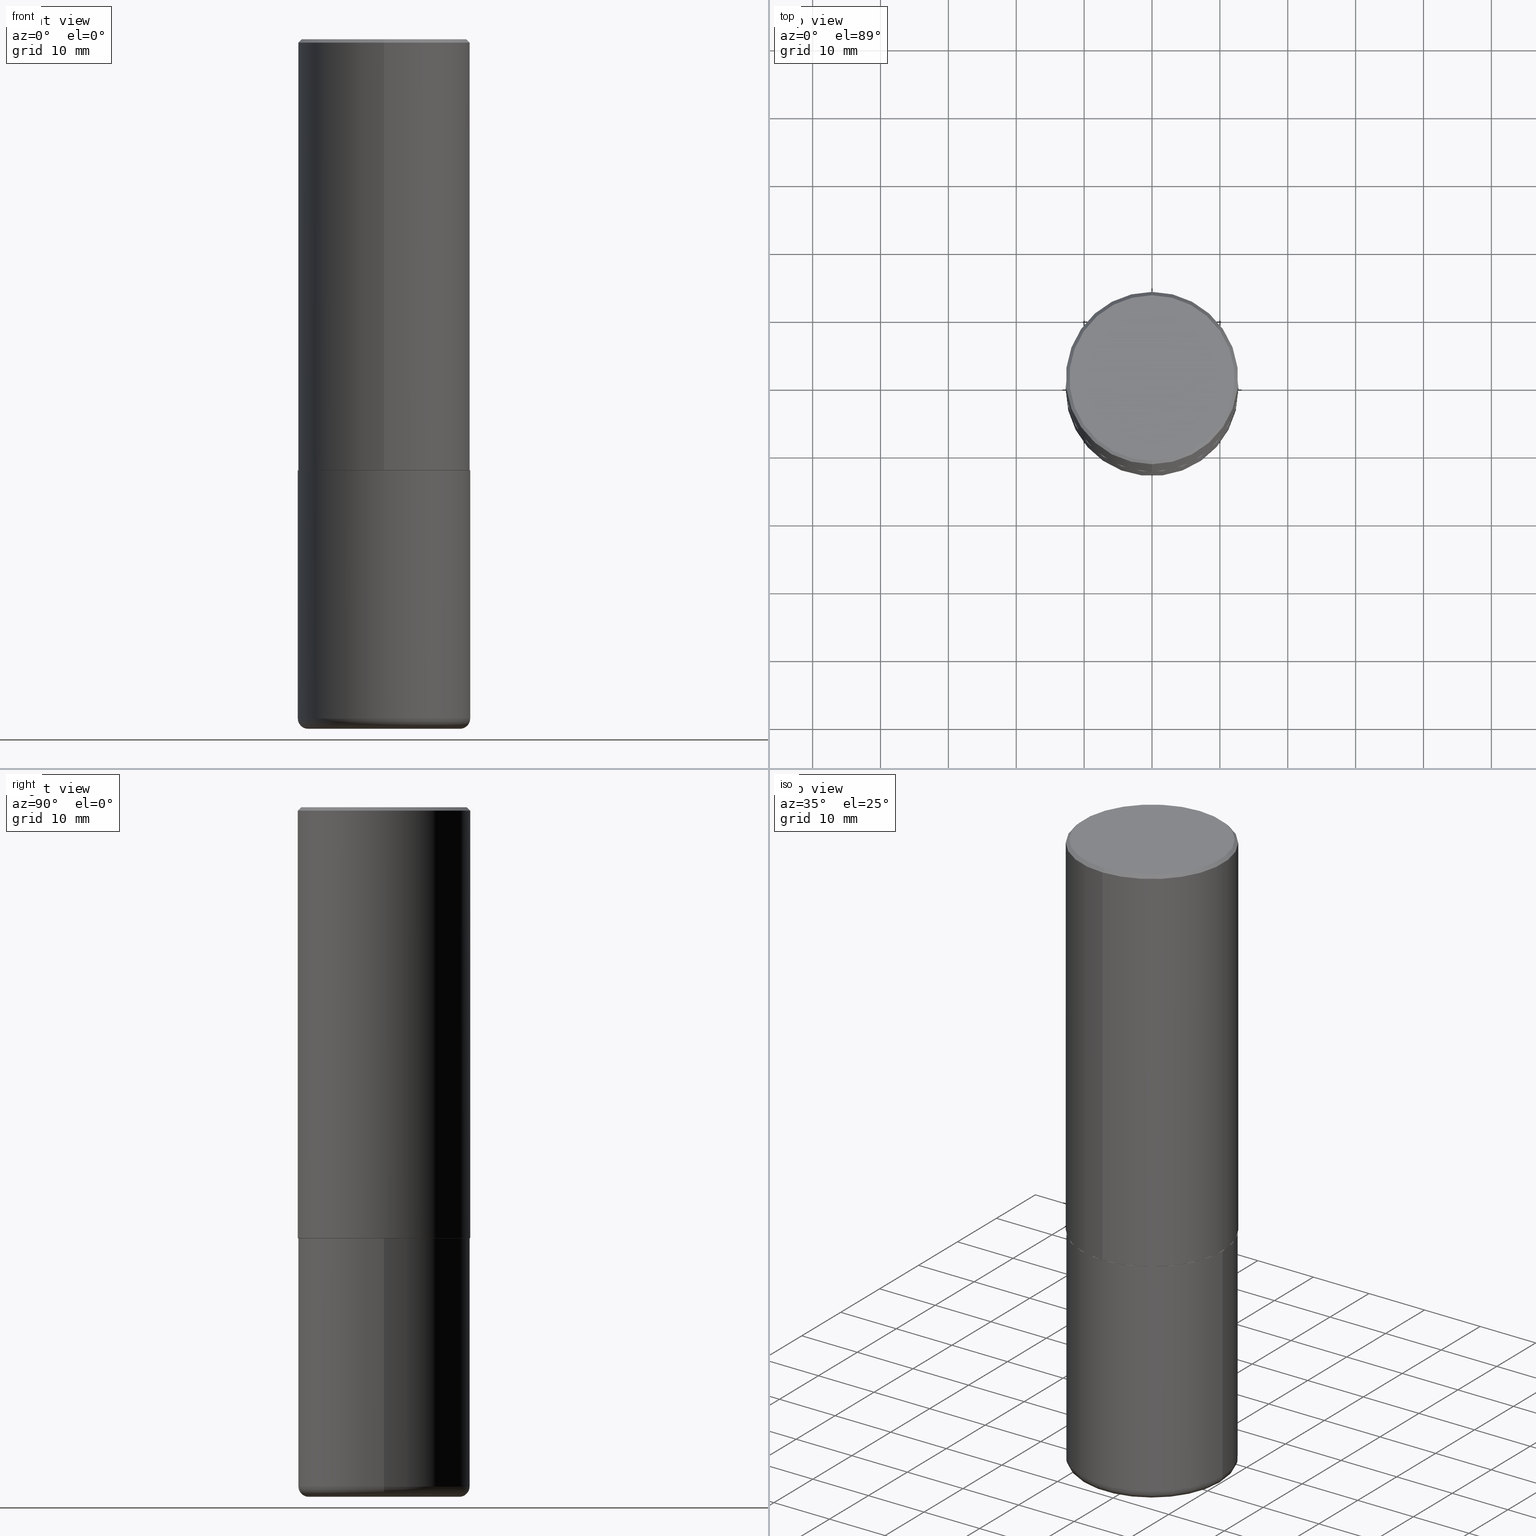
[diagram: canonical four-view strip — front | top / right | iso, engineering-drawing reading convention]
A machine part, canonical four-view strip (front | top / right | iso — engineering-drawing reading convention). The complete STEP part file that produces these views, byte-faithful:
ISO-10303-21;
HEADER;
FILE_DESCRIPTION (( 'STEP AP203' ),
    '1' );
FILE_NAME ('36717.STEP',
    '2024-03-01T17:32:02',
    ( '' ),
    ( '' ),
    'SwSTEP 2.0',
    'SolidWorks 2023',
    '' );
FILE_SCHEMA (( 'CONFIG_CONTROL_DESIGN' ));
ENDSEC;

DATA;
#1 = AXIS2_PLACEMENT_3D ( 'NONE', #121, #82, #14 ) ;
#2 = CARTESIAN_POINT ( 'NONE',  ( 0.000000000000000000, 0.000000000000000000, 0.000000000000000000 ) ) ;
#3 = ORIENTED_EDGE ( 'NONE', *, *, #92, .F. ) ;
#4 = ADVANCED_FACE ( 'NONE', ( #234 ), #270, .T. ) ;
#5 = VERTEX_POINT ( 'NONE', #198 ) ;
#6 = ORIENTED_EDGE ( 'NONE', *, *, #230, .F. ) ;
#7 = DIRECTION ( 'NONE',  ( -2.444544534276841438E-29, 3.492804948822114088E-15, 1.000000000000000000 ) ) ;
#8 = UNCERTAINTY_MEASURE_WITH_UNIT (LENGTH_MEASURE( 1.000000000000000082E-05 ), #215, 'distance_accuracy_value', 'NONE');
#9 = DIRECTION ( 'NONE',  ( -2.444544534276841438E-29, 3.492804948822114088E-15, 1.000000000000000000 ) ) ;
#10 = EDGE_CURVE ( 'NONE', #385, #30, #356, .T. ) ;
#11 = PERSON_AND_ORGANIZATION_ROLE ( 'design_owner' ) ;
#12 = CARTESIAN_POINT ( 'NONE',  ( -3.484498376165385415E-15, -0.4990000000000087144, -2.499999999999998668 ) ) ;
#13 = PERSON_AND_ORGANIZATION_ROLE ( 'classification_officer' ) ;
#14 = DIRECTION ( 'NONE',  ( 1.000000000000000000, -6.982962677686269077E-15, 0.000000000000000000 ) ) ;
#15 = EDGE_CURVE ( 'NONE', #30, #224, #293, .T. ) ;
#16 = DIRECTION ( 'NONE',  ( 0.000000000000000000, 0.000000000000000000, 1.000000000000000000 ) ) ;
#17 = CARTESIAN_POINT ( 'NONE',  ( 3.545608251442960663E-15, 0.4989999999999912283, -2.500000000000001776 ) ) ;
#18 = COORDINATED_UNIVERSAL_TIME_OFFSET ( 5, 0, .BEHIND. ) ;
#19 = AXIS2_PLACEMENT_3D ( 'NONE', #182, #122, #336 ) ;
#20 = VECTOR ( 'NONE', #314, 39.37007874015748143 ) ;
#21 = DIRECTION ( 'NONE',  ( -4.851104656540957964E-15, -0.7071067811865491270, -0.7071067811865459074 ) ) ;
#22 = CIRCLE ( 'NONE', #19, 0.5000000000000001110 ) ;
#23 = COORDINATED_UNIVERSAL_TIME_OFFSET ( 5, 0, .BEHIND. ) ;
#24 = DIRECTION ( 'NONE',  ( -2.444544534276841438E-29, 3.492804948822114088E-15, 1.000000000000000000 ) ) ;
#25 = ORIENTED_EDGE ( 'NONE', *, *, #329, .F. ) ;
#26 = DIRECTION ( 'NONE',  ( -6.982962677686265922E-15, -1.000000000000000000, 3.491643216902136408E-15 ) ) ;
#27 = EDGE_LOOP ( 'NONE', ( #192, #72, #325, #253 ) ) ;
#28 = PRODUCT_RELATED_PRODUCT_CATEGORY ( 'detail', '', ( #244 ) ) ;
#29 = DIRECTION ( 'NONE',  ( -6.982962677686265922E-15, -1.000000000000000000, 3.492804948822113694E-15 ) ) ;
#30 = VERTEX_POINT ( 'NONE', #110 ) ;
#31 = CALENDAR_DATE ( 2024, 1, 3 ) ;
#32 = CARTESIAN_POINT ( 'NONE',  ( 4.889089068553708695E-31, -6.985609897644266091E-17, -0.02000000000000010797 ) ) ;
#33 = EDGE_LOOP ( 'NONE', ( #105, #389, #350, #220 ) ) ;
#34 = PERSON_AND_ORGANIZATION ( #297, #178 ) ;
#35 = ADVANCED_FACE ( 'NONE', ( #235 ), #299, .T. ) ;
#36 = COORDINATED_UNIVERSAL_TIME_OFFSET ( 5, 0, .BEHIND. ) ;
#37 = LOCAL_TIME ( 12, 32, 2.000000000000000000, #36 ) ;
#38 = CYLINDRICAL_SURFACE ( 'NONE', #355, 0.5000000000000001110 ) ;
#39 = VECTOR ( 'NONE', #206, 39.37007874015748143 ) ;
#40 = VERTEX_POINT ( 'NONE', #327 ) ;
#41 = CC_DESIGN_PERSON_AND_ORGANIZATION_ASSIGNMENT ( #51, #49, ( #317 ) ) ;
#42 = EDGE_LOOP ( 'NONE', ( #71, #195, #366, #330 ) ) ;
#43 = ORIENTED_EDGE ( 'NONE', *, *, #199, .T. ) ;
#44 = LOCAL_TIME ( 12, 32, 2.000000000000000000, #18 ) ;
#45 = AXIS2_PLACEMENT_3D ( 'NONE', #48, #294, #29 ) ;
#46 = CC_DESIGN_APPROVAL ( #228, ( #125 ) ) ;
#47 = DIRECTION ( 'NONE',  ( -2.445468806185136597E-29, 3.491481338843145583E-15, 1.000000000000000000 ) ) ;
#48 = CARTESIAN_POINT ( 'NONE',  ( 3.219185358931801043E-45, -4.599624345227544074E-31, -1.316885544032078073E-16 ) ) ;
#49 = PERSON_AND_ORGANIZATION_ROLE ( 'creator' ) ;
#50 = CARTESIAN_POINT ( 'NONE',  ( 0.4400000000000000022, -1.703842893355454063E-14, -4.000000000000000888 ) ) ;
#51 = PERSON_AND_ORGANIZATION ( #297, #178 ) ;
#52 = DIRECTION ( 'NONE',  ( -2.445468806185136597E-29, 3.491481338843145583E-15, 1.000000000000000000 ) ) ;
#53 = ADVANCED_FACE ( 'NONE', ( #232 ), #106, .T. ) ;
#54 = PERSON_AND_ORGANIZATION ( #297, #178 ) ;
#55 = CARTESIAN_POINT ( 'NONE',  ( 0.5000000000000001110, -1.724791781388512737E-14, -3.939999999999999947 ) ) ;
#56 =( NAMED_UNIT ( * ) PLANE_ANGLE_UNIT ( ) SI_UNIT ( $, .RADIAN. ) );
#57 = DIRECTION ( 'NONE',  ( 6.982962677686265922E-15, 1.000000000000000000, -3.491643216902136408E-15 ) ) ;
#58 = LENGTH_MEASURE_WITH_UNIT ( LENGTH_MEASURE( 0.02539999999999999897 ), #345 );
#59 = AXIS2_PLACEMENT_3D ( 'NONE', #319, #407, #123 ) ;
#60 = AXIS2_PLACEMENT_3D ( 'NONE', #301, #132, #202 ) ;
#61 = DIRECTION ( 'NONE',  ( 6.982962677686265922E-15, 1.000000000000000000, -3.492804948822114482E-15 ) ) ;
#62 = ADVANCED_FACE ( 'NONE', ( #361 ), #38, .T. ) ;
#63 = DIRECTION ( 'NONE',  ( -1.000000000000000000, 6.982962677686265922E-15, -4.876176775795935793E-29 ) ) ;
#64 = VERTEX_POINT ( 'NONE', #138 ) ;
#65 = DIRECTION ( 'NONE',  ( -2.445468806185136597E-29, 3.491481338843145583E-15, 1.000000000000000000 ) ) ;
#66 = COORDINATED_UNIVERSAL_TIME_OFFSET ( 5, 0, .BEHIND. ) ;
#67 = DIRECTION ( 'NONE',  ( 1.000000000000000000, -6.982962677686271444E-15, 0.000000000000000000 ) ) ;
#68 = ADVANCED_BREP_SHAPE_REPRESENTATION ( '36717', ( #290, #142, #417 ), #273 ) ;
#69 = ADVANCED_FACE ( 'NONE', ( #343 ), #277, .T. ) ;
#70 = APPROVAL_STATUS ( 'not_yet_approved' ) ;
#71 = ORIENTED_EDGE ( 'NONE', *, *, #165, .T. ) ;
#72 = ORIENTED_EDGE ( 'NONE', *, *, #242, .T. ) ;
#73 = ADVANCED_FACE ( 'NONE', ( #342 ), #341, .T. ) ;
#74 = LOCAL_TIME ( 12, 32, 2.000000000000000000, #23 ) ;
#75 = ORIENTED_EDGE ( 'NONE', *, *, #84, .T. ) ;
#76 = DIRECTION ( 'NONE',  ( -2.444544534276841438E-29, 3.492804948822114088E-15, 1.000000000000000000 ) ) ;
#77 = VERTEX_POINT ( 'NONE', #338 ) ;
#78 = DIRECTION ( 'NONE',  ( -1.000000000000000000, 7.105427357600993970E-15, 0.000000000000000000 ) ) ;
#79 = CC_DESIGN_DATE_AND_TIME_ASSIGNMENT ( #279, #207, ( #295 ) ) ;
#80 = AXIS2_PLACEMENT_3D ( 'NONE', #85, #184, #309 ) ;
#81 = CARTESIAN_POINT ( 'NONE',  ( 9.781875224740547508E-29, -1.396592535537258391E-14, -4.000000000000000888 ) ) ;
#82 = DIRECTION ( 'NONE',  ( -2.445468806185136597E-29, 3.491481338843145583E-15, 1.000000000000000000 ) ) ;
#83 = PERSON_AND_ORGANIZATION ( #297, #178 ) ;
#84 = EDGE_CURVE ( 'NONE', #5, #387, #143, .T. ) ;
#85 = CARTESIAN_POINT ( 'NONE',  ( 6.113672015462842613E-29, -8.728703347107864943E-15, -2.500000000000000000 ) ) ;
#86 = APPROVAL_DATE_TIME ( #213, #255 ) ;
#87 = AXIS2_PLACEMENT_3D ( 'NONE', #81, #205, #335 ) ;
#88 = DIRECTION ( 'NONE',  ( -2.444544534276840877E-29, 3.492804948822114482E-15, 1.000000000000000000 ) ) ;
#89 = LINE ( 'NONE', #282, #140 ) ;
#90 = APPROVAL_ROLE ( '' ) ;
#91 = DIRECTION ( 'NONE',  ( -2.444544534276841438E-29, 3.492804948822114088E-15, 1.000000000000000000 ) ) ;
#92 = EDGE_CURVE ( 'NONE', #304, #359, #126, .T. ) ;
#93 = DATE_AND_TIME ( #339, #410 ) ;
#94 = AXIS2_PLACEMENT_3D ( 'NONE', #167, #47, #306 ) ;
#95 = CYLINDRICAL_SURFACE ( 'NONE', #59, 0.5000000000000000000 ) ;
#96 = FACE_OUTER_BOUND ( 'NONE', #33, .T. ) ;
#97 = CARTESIAN_POINT ( 'NONE',  ( 9.635147096369438236E-29, -1.375643647504199401E-14, -3.939999999999999947 ) ) ;
#98 = ORIENTED_EDGE ( 'NONE', *, *, #165, .F. ) ;
#99 = AXIS2_PLACEMENT_3D ( 'NONE', #32, #287, #26 ) ;
#100 = FACE_OUTER_BOUND ( 'NONE', #414, .T. ) ;
#101 = AXIS2_PLACEMENT_3D ( 'NONE', #397, #368, #57 ) ;
#102 = AXIS2_PLACEMENT_3D ( 'NONE', #97, #65, #296 ) ;
#103 = ORIENTED_EDGE ( 'NONE', *, *, #92, .T. ) ;
#104 = ORIENTED_EDGE ( 'NONE', *, *, #289, .T. ) ;
#105 = ORIENTED_EDGE ( 'NONE', *, *, #225, .T. ) ;
#106 = CONICAL_SURFACE ( 'NONE', #275, 0.4989999999999999991, 0.7853981633976873100 ) ;
#107 = ORIENTED_EDGE ( 'NONE', *, *, #398, .T. ) ;
#108 = ORIENTED_EDGE ( 'NONE', *, *, #133, .T. ) ;
#109 = CC_DESIGN_PERSON_AND_ORGANIZATION_ASSIGNMENT ( #54, #376, ( #295 ) ) ;
#110 = CARTESIAN_POINT ( 'NONE',  ( -0.5000000000000001110, -1.020372279624149151E-14, -3.939999999999999947 ) ) ;
#111 = LOCAL_TIME ( 12, 32, 2.000000000000000000, #66 ) ;
#112 = AXIS2_PLACEMENT_3D ( 'NONE', #175, #239, #370 ) ;
#113 = DIRECTION ( 'NONE',  ( 4.937700262164541731E-15, 0.7071067811865442421, -0.7071067811865507924 ) ) ;
#114 =( NAMED_UNIT ( * ) SI_UNIT ( $, .STERADIAN. ) SOLID_ANGLE_UNIT ( ) );
#115 = DIRECTION ( 'NONE',  ( -4.937700262165728178E-15, -0.7071067811867141062, 0.7071067811863809283 ) ) ;
#116 = DIRECTION ( 'NONE',  ( -6.982962677686265922E-15, -1.000000000000000000, 3.492804948822113694E-15 ) ) ;
#117 = DIRECTION ( 'NONE',  ( -2.444544534276841158E-29, 3.492804948822114482E-15, 1.000000000000000000 ) ) ;
#118 = CARTESIAN_POINT ( 'NONE',  ( 3.219185358931801043E-45, -4.599624345227544074E-31, -1.316885544032078073E-16 ) ) ;
#119 = AXIS2_PLACEMENT_3D ( 'NONE', #196, #395, #78 ) ;
#120 = LINE ( 'NONE', #280, #20 ) ;
#121 = CARTESIAN_POINT ( 'NONE',  ( 6.113672015462842613E-29, -8.728703347107864943E-15, -2.500000000000000000 ) ) ;
#122 = DIRECTION ( 'NONE',  ( -2.445468806185136597E-29, 3.491481338843145583E-15, 1.000000000000000000 ) ) ;
#123 = DIRECTION ( 'NONE',  ( 1.000000000000000000, -6.982962677686266711E-15, 4.876176775795935793E-29 ) ) ;
#124 = VERTEX_POINT ( 'NONE', #50 ) ;
#125 = SECURITY_CLASSIFICATION ( '', '', #276 ) ;
#126 = CIRCLE ( 'NONE', #1, 0.5000000000000000000 ) ;
#127 = FACE_OUTER_BOUND ( 'NONE', #271, .T. ) ;
#128 = EDGE_CURVE ( 'NONE', #77, #229, #399, .T. ) ;
#129 = CARTESIAN_POINT ( 'NONE',  ( 4.206032757375876713E-29, -1.146055134077212698E-14, -2.500000000000000000 ) ) ;
#130 = DIRECTION ( 'NONE',  ( 2.438088387897960049E-29, -3.491481338843145188E-15, -1.000000000000000000 ) ) ;
#131 = ORIENTED_EDGE ( 'NONE', *, *, #189, .T. ) ;
#132 = DIRECTION ( 'NONE',  ( -2.445468806185136597E-29, 3.491481338843145583E-15, 1.000000000000000000 ) ) ;
#133 = EDGE_CURVE ( 'NONE', #30, #304, #403, .T. ) ;
#134 = ORIENTED_EDGE ( 'NONE', *, *, #150, .F. ) ;
#135 = EDGE_LOOP ( 'NONE', ( #362, #104 ) ) ;
#136 = EDGE_LOOP ( 'NONE', ( #107, #108, #134, #332 ) ) ;
#137 = DIRECTION ( 'NONE',  ( -6.982962677686265922E-15, -1.000000000000000000, 3.284787166730577015E-15 ) ) ;
#138 = CARTESIAN_POINT ( 'NONE',  ( -3.484498376165385415E-15, -0.4990000000000087144, -2.499999999999998668 ) ) ;
#139 = AXIS2_PLACEMENT_3D ( 'NONE', #118, #153, #116 ) ;
#140 = VECTOR ( 'NONE', #21, 39.37007874015748143 ) ;
#141 = DIRECTION ( 'NONE',  ( 1.000000000000000000, 0.000000000000000000, 0.000000000000000000 ) ) ;
#142 = MANIFOLD_SOLID_BREP ( 'Body-Move/Copy2[2]', #303 ) ;
#143 = LINE ( 'NONE', #313, #218 ) ;
#144 = CALENDAR_DATE ( 2024, 1, 3 ) ;
#145 = DIRECTION ( 'NONE',  ( -6.982962677686265922E-15, -1.000000000000000000, 3.492804948822114088E-15 ) ) ;
#146 = APPROVAL_ROLE ( '' ) ;
#147 = CARTESIAN_POINT ( 'NONE',  ( 0.000000000000000000, 0.000000000000000000, 0.000000000000000000 ) ) ;
#148 = CIRCLE ( 'NONE', #283, 0.5000000000000002220 ) ;
#149 = CONICAL_SURFACE ( 'NONE', #204, 0.4989999999999999991, 0.7853981633976873100 ) ;
#150 = EDGE_CURVE ( 'NONE', #359, #304, #310, .T. ) ;
#151 = CARTESIAN_POINT ( 'NONE',  ( -0.5000000000000000000, 3.552713678800500929E-15, -2.459467545127452891E-29 ) ) ;
#152 = DESIGN_CONTEXT ( 'detailed design', #248, 'design' ) ;
#153 = DIRECTION ( 'NONE',  ( -2.444544534276841438E-29, 3.492804948822114088E-15, 1.000000000000000000 ) ) ;
#154 = FACE_OUTER_BOUND ( 'NONE', #383, .T. ) ;
#155 = ORIENTED_EDGE ( 'NONE', *, *, #367, .F. ) ;
#156 = CARTESIAN_POINT ( 'NONE',  ( 4.889089068553708695E-31, -6.985609897644266091E-17, -0.02000000000000010797 ) ) ;
#157 = ORIENTED_EDGE ( 'NONE', *, *, #261, .T. ) ;
#158 = EDGE_CURVE ( 'NONE', #64, #40, #307, .T. ) ;
#159 = CIRCLE ( 'NONE', #112, 0.5000000000000002220 ) ;
#160 = CARTESIAN_POINT ( 'NONE',  ( 3.351822085289408337E-15, 0.4800000000000000933, -1.742390652636218903E-15 ) ) ;
#161 = ORIENTED_EDGE ( 'NONE', *, *, #367, .T. ) ;
#162 = DIRECTION ( 'NONE',  ( -6.982962677686266711E-15, -1.000000000000000000, 3.278217592397114284E-15 ) ) ;
#163 = DATE_AND_TIME ( #326, #37 ) ;
#164 = CC_DESIGN_SECURITY_CLASSIFICATION ( #125, ( #317 ) ) ;
#165 = EDGE_CURVE ( 'NONE', #40, #229, #159, .T. ) ;
#166 = CIRCLE ( 'NONE', #179, 0.4989999999999999991 ) ;
#167 = CARTESIAN_POINT ( 'NONE',  ( 9.635147096369438236E-29, -1.375643647504199401E-14, -3.939999999999999947 ) ) ;
#168 = APPLICATION_CONTEXT ( 'configuration controlled 3d designs of mechanical parts and assemblies' ) ;
#169 = DIRECTION ( 'NONE',  ( -2.445468806185136597E-29, 3.491481338843145583E-15, 1.000000000000000000 ) ) ;
#170 = CARTESIAN_POINT ( 'NONE',  ( 0.000000000000000000, 0.000000000000000000, 0.000000000000000000 ) ) ;
#171 = CC_DESIGN_PERSON_AND_ORGANIZATION_ASSIGNMENT ( #210, #13, ( #125 ) ) ;
#172 = ORIENTED_EDGE ( 'NONE', *, *, #10, .F. ) ;
#173 = CIRCLE ( 'NONE', #402, 0.06000000000000024758 ) ;
#174 = ORIENTED_EDGE ( 'NONE', *, *, #363, .T. ) ;
#175 = CARTESIAN_POINT ( 'NONE',  ( 6.108916791157827585E-29, -8.728519567106463881E-15, -2.499000000000000110 ) ) ;
#176 = PERSON_AND_ORGANIZATION ( #297, #178 ) ;
#177 = DIRECTION ( 'NONE',  ( -2.445468806185136877E-29, 3.491481338843145188E-15, 1.000000000000000000 ) ) ;
#178 = ORGANIZATION ( 'UNSPECIFIED', 'UNSPECIFIED', '' ) ;
#179 = AXIS2_PLACEMENT_3D ( 'NONE', #211, #9, #374 ) ;
#180 = PERSON_AND_ORGANIZATION_ROLE ( 'design_supplier' ) ;
#181 = DIRECTION ( 'NONE',  ( 1.000000000000000000, -6.982962677686266711E-15, 0.000000000000000000 ) ) ;
#182 = CARTESIAN_POINT ( 'NONE',  ( 9.635147096369438236E-29, -1.375643647504199401E-14, -3.939999999999999947 ) ) ;
#183 = DIRECTION ( 'NONE',  ( -6.982962677686265922E-15, -1.000000000000000000, 3.492804948822114482E-15 ) ) ;
#184 = DIRECTION ( 'NONE',  ( -2.445468806185136597E-29, 3.491481338843145583E-15, 1.000000000000000000 ) ) ;
#185 = CONICAL_SURFACE ( 'NONE', #263, 0.5000000000000000000, 0.7853981633974471688 ) ;
#186 = DIRECTION ( 'NONE',  ( 6.982962677686265922E-15, 1.000000000000000000, -3.491643216902136408E-15 ) ) ;
#187 = SHAPE_DEFINITION_REPRESENTATION ( #369, #68 ) ;
#188 = PLANE ( 'NONE',  #323 ) ;
#189 = EDGE_CURVE ( 'NONE', #224, #359, #286, .T. ) ;
#190 = ORIENTED_EDGE ( 'NONE', *, *, #225, .F. ) ;
#191 = CARTESIAN_POINT ( 'NONE',  ( 0.5000000000000000000, -1.222018468595099830E-14, -2.500000000000000000 ) ) ;
#192 = ORIENTED_EDGE ( 'NONE', *, *, #289, .F. ) ;
#193 = APPROVAL_DATE_TIME ( #163, #228 ) ;
#194 = DIRECTION ( 'NONE',  ( -1.000000000000000000, 6.982962677686265922E-15, -4.876176775795935793E-29 ) ) ;
#195 = ORIENTED_EDGE ( 'NONE', *, *, #230, .T. ) ;
#196 = CARTESIAN_POINT ( 'NONE',  ( -0.4400000000000000022, -1.063004843769755357E-14, -3.939999999999999947 ) ) ;
#197 = EDGE_LOOP ( 'NONE', ( #6, #161, #157, #25 ) ) ;
#198 = CARTESIAN_POINT ( 'NONE',  ( 3.421651712066271240E-15, 0.4800000000000000933, -1.808234929837822918E-15 ) ) ;
#199 = EDGE_CURVE ( 'NONE', #77, #64, #166, .T. ) ;
#200 = ORIENTED_EDGE ( 'NONE', *, *, #15, .T. ) ;
#201 = APPROVAL_PERSON_ORGANIZATION ( #251, #212, #90 ) ;
#202 = DIRECTION ( 'NONE',  ( 1.000000000000000000, -6.982962677686265133E-15, 0.000000000000000000 ) ) ;
#203 = AXIS2_PLACEMENT_3D ( 'NONE', #170, #169, #364 ) ;
#204 = AXIS2_PLACEMENT_3D ( 'NONE', #382, #252, #354 ) ;
#205 = DIRECTION ( 'NONE',  ( -2.445468806185136597E-29, 3.491481338843145583E-15, 1.000000000000000000 ) ) ;
#206 = DIRECTION ( 'NONE',  ( 5.024295867789263036E-15, 0.7071067811867189912, 0.7071067811863760433 ) ) ;
#207 = DATE_TIME_ROLE ( 'creation_date' ) ;
#208 = CARTESIAN_POINT ( 'NONE',  ( 0.5000000000000000000, -3.491481338843133355E-15, 2.438088387897967896E-29 ) ) ;
#209 = AXIS2_PLACEMENT_3D ( 'NONE', #214, #88, #183 ) ;
#210 = PERSON_AND_ORGANIZATION ( #297, #178 ) ;
#211 = CARTESIAN_POINT ( 'NONE',  ( 6.111361335692103595E-29, -8.732012372055285615E-15, -2.500000000000000000 ) ) ;
#212 = APPROVAL ( #281, 'UNSPECIFIED' ) ;
#213 = DATE_AND_TIME ( #144, #74 ) ;
#214 = CARTESIAN_POINT ( 'NONE',  ( 6.111361335692103595E-29, -8.732012372055285615E-15, -2.500000000000000000 ) ) ;
#215 =( CONVERSION_BASED_UNIT ( 'INCH', #58 ) LENGTH_UNIT ( ) NAMED_UNIT ( #240 ) );
#216 = DIRECTION ( 'NONE',  ( 2.438088387897960049E-29, -3.491481338843145188E-15, -1.000000000000000000 ) ) ;
#217 = AXIS2_PLACEMENT_3D ( 'NONE', #346, #130, #63 ) ;
#218 = VECTOR ( 'NONE', #113, 39.37007874015748143 ) ;
#219 = DIRECTION ( 'NONE',  ( -6.982962677686265922E-15, -1.000000000000000000, 3.284787166730577015E-15 ) ) ;
#220 = ORIENTED_EDGE ( 'NONE', *, *, #322, .F. ) ;
#221 = PLANE ( 'NONE',  #245 ) ;
#222 = ORIENTED_EDGE ( 'NONE', *, *, #322, .T. ) ;
#223 = CIRCLE ( 'NONE', #334, 0.5000000000000000000 ) ;
#224 = VERTEX_POINT ( 'NONE', #55 ) ;
#225 = EDGE_CURVE ( 'NONE', #124, #385, #328, .T. ) ;
#226 = APPROVAL_ROLE ( '' ) ;
#227 = ORIENTED_EDGE ( 'NONE', *, *, #242, .F. ) ;
#228 = APPROVAL ( #70, 'UNSPECIFIED' ) ;
#229 = VERTEX_POINT ( 'NONE', #312 ) ;
#230 = EDGE_CURVE ( 'NONE', #229, #387, #120, .T. ) ;
#231 = VECTOR ( 'NONE', #115, 39.37007874015748143 ) ;
#232 = FACE_OUTER_BOUND ( 'NONE', #408, .T. ) ;
#233 = VERTEX_POINT ( 'NONE', #405 ) ;
#234 = FACE_OUTER_BOUND ( 'NONE', #136, .T. ) ;
#235 = FACE_OUTER_BOUND ( 'NONE', #264, .T. ) ;
#236 = AXIS2_PLACEMENT_3D ( 'NONE', #377, #258, #219 ) ;
#237 = DIRECTION ( 'NONE',  ( -6.982962677686265922E-15, -1.000000000000000000, 3.492804948822114088E-15 ) ) ;
#238 = CARTESIAN_POINT ( 'NONE',  ( 0.000000000000000000, 0.000000000000000000, 0.000000000000000000 ) ) ;
#239 = DIRECTION ( 'NONE',  ( -2.444544534276841438E-29, 3.492804948822114088E-15, 1.000000000000000000 ) ) ;
#240 = DIMENSIONAL_EXPONENTS ( 1.000000000000000000, 0.000000000000000000, 0.000000000000000000, 0.000000000000000000, 0.000000000000000000, 0.000000000000000000, 0.000000000000000000 ) ;
#241 = PERSON_AND_ORGANIZATION ( #297, #178 ) ;
#242 = EDGE_CURVE ( 'NONE', #233, #391, #89, .T. ) ;
#243 = FACE_OUTER_BOUND ( 'NONE', #292, .T. ) ;
#244 = PRODUCT ( '36717', '36717', '', ( #249 ) ) ;
#245 = AXIS2_PLACEMENT_3D ( 'NONE', #129, #216, #194 ) ;
#246 = APPROVAL_STATUS ( 'not_yet_approved' ) ;
#247 = CARTESIAN_POINT ( 'NONE',  ( -3.491481338843133750E-15, -0.5000000000000001110, 1.746402474411057438E-15 ) ) ;
#248 = APPLICATION_CONTEXT ( 'configuration controlled 3d designs of mechanical parts and assemblies' ) ;
#249 = MECHANICAL_CONTEXT ( 'NONE', #168, 'mechanical' ) ;
#250 = DIRECTION ( 'NONE',  ( -2.445468806185136877E-29, 3.491481338843145188E-15, 1.000000000000000000 ) ) ;
#251 = PERSON_AND_ORGANIZATION ( #297, #178 ) ;
#252 = DIRECTION ( 'NONE',  ( -2.444544534276841438E-29, 3.492804948822114088E-15, 1.000000000000000000 ) ) ;
#253 = ORIENTED_EDGE ( 'NONE', *, *, #84, .F. ) ;
#254 = CIRCLE ( 'NONE', #236, 0.4989999999999999991 ) ;
#255 = APPROVAL ( #246, 'UNSPECIFIED' ) ;
#256 = DATE_AND_TIME ( #31, #111 ) ;
#257 = CARTESIAN_POINT ( 'NONE',  ( 4.889089068553708695E-31, -6.985609897644266091E-17, -0.02000000000000010797 ) ) ;
#258 = DIRECTION ( 'NONE',  ( -2.444544534276841438E-29, 3.492804948822114088E-15, 1.000000000000000000 ) ) ;
#259 = ORIENTED_EDGE ( 'NONE', *, *, #15, .F. ) ;
#260 = DIRECTION ( 'NONE',  ( 2.444544534276841438E-29, -3.492804948822114088E-15, -1.000000000000000000 ) ) ;
#261 = EDGE_CURVE ( 'NONE', #40, #391, #400, .T. ) ;
#262 = ORIENTED_EDGE ( 'NONE', *, *, #158, .F. ) ;
#263 = AXIS2_PLACEMENT_3D ( 'NONE', #156, #260, #186 ) ;
#264 = EDGE_LOOP ( 'NONE', ( #172, #390, #222, #259 ) ) ;
#265 = ORIENTED_EDGE ( 'NONE', *, *, #158, .T. ) ;
#266 = ADVANCED_FACE ( 'NONE', ( #243 ), #372, .F. ) ;
#267 = ORIENTED_EDGE ( 'NONE', *, *, #128, .T. ) ;
#268 = CIRCLE ( 'NONE', #87, 0.4400000000000000022 ) ;
#269 = ORIENTED_EDGE ( 'NONE', *, *, #363, .F. ) ;
#270 = CYLINDRICAL_SURFACE ( 'NONE', #203, 0.5000000000000000000 ) ;
#271 = EDGE_LOOP ( 'NONE', ( #353, #103 ) ) ;
#272 = CC_DESIGN_DATE_AND_TIME_ASSIGNMENT ( #256, #415, ( #125 ) ) ;
#273 =( GEOMETRIC_REPRESENTATION_CONTEXT ( 3 ) GLOBAL_UNCERTAINTY_ASSIGNED_CONTEXT ( ( #8 ) ) GLOBAL_UNIT_ASSIGNED_CONTEXT ( ( #215, #56, #114 ) ) REPRESENTATION_CONTEXT ( 'NONE', 'WORKASPACE' ) );
#274 = DIRECTION ( 'NONE',  ( -2.444544534276841438E-29, 3.492804948822114088E-15, 1.000000000000000000 ) ) ;
#275 = AXIS2_PLACEMENT_3D ( 'NONE', #300, #7, #137 ) ;
#276 = SECURITY_CLASSIFICATION_LEVEL ( 'unclassified' ) ;
#277 = CYLINDRICAL_SURFACE ( 'NONE', #365, 0.5000000000000001110 ) ;
#278 = EDGE_CURVE ( 'NONE', #385, #124, #268, .T. ) ;
#279 = DATE_AND_TIME ( #404, #44 ) ;
#280 = CARTESIAN_POINT ( 'NONE',  ( 3.552713678800501718E-15, 0.5000000000000001110, -1.746402474411057438E-15 ) ) ;
#281 = APPROVAL_STATUS ( 'not_yet_approved' ) ;
#282 = CARTESIAN_POINT ( 'NONE',  ( -3.430248998885764992E-15, -0.5000000000000001110, -0.01999999999999835937 ) ) ;
#283 = AXIS2_PLACEMENT_3D ( 'NONE', #409, #91, #162 ) ;
#284 = CC_DESIGN_APPROVAL ( #212, ( #317 ) ) ;
#285 = APPLICATION_PROTOCOL_DEFINITION ( 'international standard', 'config_control_design', 1994, #248 ) ;
#286 = LINE ( 'NONE', #208, #348 ) ;
#287 = DIRECTION ( 'NONE',  ( -2.444544534276841438E-29, 3.492804948822114088E-15, 1.000000000000000000 ) ) ;
#288 = EDGE_LOOP ( 'NONE', ( #190, #302 ) ) ;
#289 = EDGE_CURVE ( 'NONE', #233, #5, #373, .T. ) ;
#290 = MANIFOLD_SOLID_BREP ( 'Body-Move/Copy2[1]', #396 ) ;
#291 = CARTESIAN_POINT ( 'NONE',  ( 0.4400000000000000022, -1.682894005322395074E-14, -3.939999999999999947 ) ) ;
#292 = EDGE_LOOP ( 'NONE', ( #269, #394 ) ) ;
#293 = CIRCLE ( 'NONE', #60, 0.5000000000000001110 ) ;
#294 = DIRECTION ( 'NONE',  ( -2.444544534276841438E-29, 3.492804948822114088E-15, 1.000000000000000000 ) ) ;
#295 = PRODUCT_DEFINITION ( 'UNKNOWN', '', #317, #152 ) ;
#296 = DIRECTION ( 'NONE',  ( 1.000000000000000000, -6.982962677686266711E-15, 4.883557194083113462E-29 ) ) ;
#297 = PERSON ( 'UNSPECIFIED', 'UNSPECIFIED', 'UNSPECIFIED', ('UNSPECIFIED'), ('UNSPECIFIED'), ('UNSPECIFIED') ) ;
#298 = APPROVAL_PERSON_ORGANIZATION ( #83, #255, #146 ) ;
#299 = TOROIDAL_SURFACE ( 'NONE', #94, 0.4400000000000000022, 0.06000000000000024758 ) ;
#300 = CARTESIAN_POINT ( 'NONE',  ( 6.111361335692103595E-29, -8.732012372055285615E-15, -2.500000000000000000 ) ) ;
#301 = CARTESIAN_POINT ( 'NONE',  ( 9.635147096369438236E-29, -1.375643647504199401E-14, -3.939999999999999947 ) ) ;
#302 = ORIENTED_EDGE ( 'NONE', *, *, #278, .F. ) ;
#303 = CLOSED_SHELL ( 'NONE', ( #352, #62, #73, #344, #69, #53, #266, #311 ) ) ;
#304 = VERTEX_POINT ( 'NONE', #324 ) ;
#305 = ADVANCED_FACE ( 'NONE', ( #127 ), #221, .F. ) ;
#306 = DIRECTION ( 'NONE',  ( 1.000000000000000000, -6.982962677686266711E-15, 4.883557194083113462E-29 ) ) ;
#307 = LINE ( 'NONE', #12, #231 ) ;
#308 = CC_DESIGN_APPROVAL ( #255, ( #295 ) ) ;
#309 = DIRECTION ( 'NONE',  ( 1.000000000000000000, -6.982962677686269077E-15, 0.000000000000000000 ) ) ;
#310 = CIRCLE ( 'NONE', #80, 0.5000000000000000000 ) ;
#311 = ADVANCED_FACE ( 'NONE', ( #321 ), #188, .F. ) ;
#312 = CARTESIAN_POINT ( 'NONE',  ( 3.552713678800533273E-15, 0.4999999999999916178, -2.499000000000001886 ) ) ;
#313 = CARTESIAN_POINT ( 'NONE',  ( 3.491481338843133355E-15, 0.4999999999999999445, -0.02000000000000185310 ) ) ;
#314 = DIRECTION ( 'NONE',  ( -2.444544534276841158E-29, 3.492804948822114482E-15, 1.000000000000000000 ) ) ;
#315 = CIRCLE ( 'NONE', #139, 0.4800000000000000933 ) ;
#316 = VECTOR ( 'NONE', #117, 39.37007874015748143 ) ;
#317 = PRODUCT_DEFINITION_FORMATION_WITH_SPECIFIED_SOURCE ( 'ANY', '', #244, .NOT_KNOWN. ) ;
#318 = APPLICATION_PROTOCOL_DEFINITION ( 'international standard', 'config_control_design', 1994, #168 ) ;
#319 = CARTESIAN_POINT ( 'NONE',  ( 0.000000000000000000, 0.000000000000000000, 0.000000000000000000 ) ) ;
#320 = DIRECTION ( 'NONE',  ( -6.982962677686265922E-15, -1.000000000000000000, 3.491643216902136408E-15 ) ) ;
#321 = FACE_OUTER_BOUND ( 'NONE', #135, .T. ) ;
#322 = EDGE_CURVE ( 'NONE', #124, #224, #173, .T. ) ;
#323 = AXIS2_PLACEMENT_3D ( 'NONE', #160, #379, #61 ) ;
#324 = CARTESIAN_POINT ( 'NONE',  ( -0.5000000000000000000, -7.689856232274428549E-15, -2.500000000000000000 ) ) ;
#325 = ORIENTED_EDGE ( 'NONE', *, *, #333, .T. ) ;
#326 = CALENDAR_DATE ( 2024, 1, 3 ) ;
#327 = CARTESIAN_POINT ( 'NONE',  ( -3.491481338843073796E-15, -0.5000000000000089928, -2.498999999999998778 ) ) ;
#328 = CIRCLE ( 'NONE', #392, 0.4400000000000000022 ) ;
#329 = EDGE_CURVE ( 'NONE', #387, #391, #223, .T. ) ;
#330 = ORIENTED_EDGE ( 'NONE', *, *, #261, .F. ) ;
#331 = ORIENTED_EDGE ( 'NONE', *, *, #128, .F. ) ;
#332 = ORIENTED_EDGE ( 'NONE', *, *, #189, .F. ) ;
#333 = EDGE_CURVE ( 'NONE', #391, #387, #388, .T. ) ;
#334 = AXIS2_PLACEMENT_3D ( 'NONE', #257, #24, #320 ) ;
#335 = DIRECTION ( 'NONE',  ( 1.000000000000000000, -6.982962677686266711E-15, 0.000000000000000000 ) ) ;
#336 = DIRECTION ( 'NONE',  ( 1.000000000000000000, -6.982962677686265133E-15, 0.000000000000000000 ) ) ;
#337 = ADVANCED_FACE ( 'NONE', ( #154 ), #95, .T. ) ;
#338 = CARTESIAN_POINT ( 'NONE',  ( 3.549160965121762351E-15, 0.4989999999999912283, -2.500000000000001776 ) ) ;
#339 = CALENDAR_DATE ( 2024, 1, 3 ) ;
#340 = CARTESIAN_POINT ( 'NONE',  ( 9.781875224740547508E-29, -1.396592535537258391E-14, -4.000000000000000888 ) ) ;
#341 = CONICAL_SURFACE ( 'NONE', #101, 0.5000000000000000000, 0.7853981633974471688 ) ;
#342 = FACE_OUTER_BOUND ( 'NONE', #27, .T. ) ;
#343 = FACE_OUTER_BOUND ( 'NONE', #197, .T. ) ;
#344 = ADVANCED_FACE ( 'NONE', ( #386 ), #185, .T. ) ;
#345 =( LENGTH_UNIT ( ) NAMED_UNIT ( * ) SI_UNIT ( $, .METRE. ) );
#346 = CARTESIAN_POINT ( 'NONE',  ( 6.313440210036972125E-29, -1.893292170748942541E-14, -4.000000000000000000 ) ) ;
#347 = APPROVAL_PERSON_ORGANIZATION ( #34, #228, #226 ) ;
#348 = VECTOR ( 'NONE', #250, 39.37007874015748143 ) ;
#349 = PLANE ( 'NONE',  #217 ) ;
#350 = ORIENTED_EDGE ( 'NONE', *, *, #398, .F. ) ;
#351 = CARTESIAN_POINT ( 'NONE',  ( -0.4400000000000000022, -1.052163005713481670E-14, -4.000000000000000888 ) ) ;
#352 = ADVANCED_FACE ( 'NONE', ( #100 ), #149, .T. ) ;
#353 = ORIENTED_EDGE ( 'NONE', *, *, #150, .T. ) ;
#354 = DIRECTION ( 'NONE',  ( -6.982962677686265922E-15, -1.000000000000000000, 3.284787166730577015E-15 ) ) ;
#355 = AXIS2_PLACEMENT_3D ( 'NONE', #2, #76, #145 ) ;
#356 = CIRCLE ( 'NONE', #119, 0.06000000000000024758 ) ;
#357 = EDGE_LOOP ( 'NONE', ( #227, #418, #75, #393 ) ) ;
#358 = CC_DESIGN_PERSON_AND_ORGANIZATION_ASSIGNMENT ( #241, #11, ( #244 ) ) ;
#359 = VERTEX_POINT ( 'NONE', #191 ) ;
#360 = VECTOR ( 'NONE', #177, 39.37007874015748143 ) ;
#361 = FACE_OUTER_BOUND ( 'NONE', #42, .T. ) ;
#362 = ORIENTED_EDGE ( 'NONE', *, *, #416, .T. ) ;
#363 = EDGE_CURVE ( 'NONE', #64, #77, #254, .T. ) ;
#364 = DIRECTION ( 'NONE',  ( 1.000000000000000000, -6.982962677686266711E-15, 4.876176775795935793E-29 ) ) ;
#365 = AXIS2_PLACEMENT_3D ( 'NONE', #147, #274, #237 ) ;
#366 = ORIENTED_EDGE ( 'NONE', *, *, #333, .F. ) ;
#367 = EDGE_CURVE ( 'NONE', #229, #40, #148, .T. ) ;
#368 = DIRECTION ( 'NONE',  ( 2.444544534276841438E-29, -3.492804948822114088E-15, -1.000000000000000000 ) ) ;
#369 = PRODUCT_DEFINITION_SHAPE ( 'NONE', 'NONE',  #295 ) ;
#370 = DIRECTION ( 'NONE',  ( -6.982962677686266711E-15, -1.000000000000000000, 3.278217592397114284E-15 ) ) ;
#371 = APPROVAL_DATE_TIME ( #93, #212 ) ;
#372 = PLANE ( 'NONE',  #209 ) ;
#373 = CIRCLE ( 'NONE', #45, 0.4800000000000000933 ) ;
#374 = DIRECTION ( 'NONE',  ( -6.982962677686265922E-15, -1.000000000000000000, 3.284787166730577015E-15 ) ) ;
#375 = ADVANCED_FACE ( 'NONE', ( #384 ), #349, .T. ) ;
#376 = PERSON_AND_ORGANIZATION_ROLE ( 'creator' ) ;
#377 = CARTESIAN_POINT ( 'NONE',  ( 6.111361335692103595E-29, -8.732012372055285615E-15, -2.500000000000000000 ) ) ;
#378 = COORDINATED_UNIVERSAL_TIME_OFFSET ( 5, 0, .BEHIND. ) ;
#379 = DIRECTION ( 'NONE',  ( 2.444544534276840877E-29, -3.492804948822114482E-15, -1.000000000000000000 ) ) ;
#380 = TOROIDAL_SURFACE ( 'NONE', #102, 0.4400000000000000022, 0.06000000000000024758 ) ;
#381 = ADVANCED_FACE ( 'NONE', ( #96 ), #380, .T. ) ;
#382 = CARTESIAN_POINT ( 'NONE',  ( 6.111361335692103595E-29, -8.732012372055285615E-15, -2.500000000000000000 ) ) ;
#383 = EDGE_LOOP ( 'NONE', ( #411, #200, #131, #3 ) ) ;
#384 = FACE_OUTER_BOUND ( 'NONE', #288, .T. ) ;
#385 = VERTEX_POINT ( 'NONE', #351 ) ;
#386 = FACE_OUTER_BOUND ( 'NONE', #357, .T. ) ;
#387 = VERTEX_POINT ( 'NONE', #413 ) ;
#388 = CIRCLE ( 'NONE', #99, 0.5000000000000000000 ) ;
#389 = ORIENTED_EDGE ( 'NONE', *, *, #10, .T. ) ;
#390 = ORIENTED_EDGE ( 'NONE', *, *, #278, .T. ) ;
#391 = VERTEX_POINT ( 'NONE', #406 ) ;
#392 = AXIS2_PLACEMENT_3D ( 'NONE', #340, #52, #181 ) ;
#393 = ORIENTED_EDGE ( 'NONE', *, *, #329, .T. ) ;
#394 = ORIENTED_EDGE ( 'NONE', *, *, #199, .F. ) ;
#395 = DIRECTION ( 'NONE',  ( 7.105427357601001859E-15, 1.000000000000000000, -3.491481338843145583E-15 ) ) ;
#396 = CLOSED_SHELL ( 'NONE', ( #4, #381, #305, #337, #35, #375 ) ) ;
#397 = CARTESIAN_POINT ( 'NONE',  ( 4.889089068553708695E-31, -6.985609897644266091E-17, -0.02000000000000010797 ) ) ;
#398 = EDGE_CURVE ( 'NONE', #224, #30, #22, .T. ) ;
#399 = LINE ( 'NONE', #17, #39 ) ;
#400 = LINE ( 'NONE', #247, #316 ) ;
#401 = CC_DESIGN_PERSON_AND_ORGANIZATION_ASSIGNMENT ( #176, #180, ( #317 ) ) ;
#402 = AXIS2_PLACEMENT_3D ( 'NONE', #291, #412, #67 ) ;
#403 = LINE ( 'NONE', #151, #360 ) ;
#404 = CALENDAR_DATE ( 2024, 1, 3 ) ;
#405 = CARTESIAN_POINT ( 'NONE',  ( -3.361644018908050055E-15, -0.4800000000000000933, 1.544857821031407057E-15 ) ) ;
#406 = CARTESIAN_POINT ( 'NONE',  ( -3.430248998885764992E-15, -0.5000000000000001110, -0.01999999999999835937 ) ) ;
#407 = DIRECTION ( 'NONE',  ( -2.445468806185136597E-29, 3.491481338843145583E-15, 1.000000000000000000 ) ) ;
#408 = EDGE_LOOP ( 'NONE', ( #331, #43, #265, #155 ) ) ;
#409 = CARTESIAN_POINT ( 'NONE',  ( 6.108916791157827585E-29, -8.728519567106463881E-15, -2.499000000000000110 ) ) ;
#410 = LOCAL_TIME ( 12, 32, 2.000000000000000000, #378 ) ;
#411 = ORIENTED_EDGE ( 'NONE', *, *, #133, .F. ) ;
#412 = DIRECTION ( 'NONE',  ( -6.982962677686266711E-15, -1.000000000000000000, 3.491481338843145583E-15 ) ) ;
#413 = CARTESIAN_POINT ( 'NONE',  ( 3.491481338843133355E-15, 0.4999999999999999445, -0.02000000000000185310 ) ) ;
#414 = EDGE_LOOP ( 'NONE', ( #174, #267, #98, #262 ) ) ;
#415 = DATE_TIME_ROLE ( 'classification_date' ) ;
#416 = EDGE_CURVE ( 'NONE', #5, #233, #315, .T. ) ;
#417 = AXIS2_PLACEMENT_3D ( 'NONE', #238, #16, #141 ) ;
#418 = ORIENTED_EDGE ( 'NONE', *, *, #416, .F. ) ;
ENDSEC;
END-ISO-10303-21;
